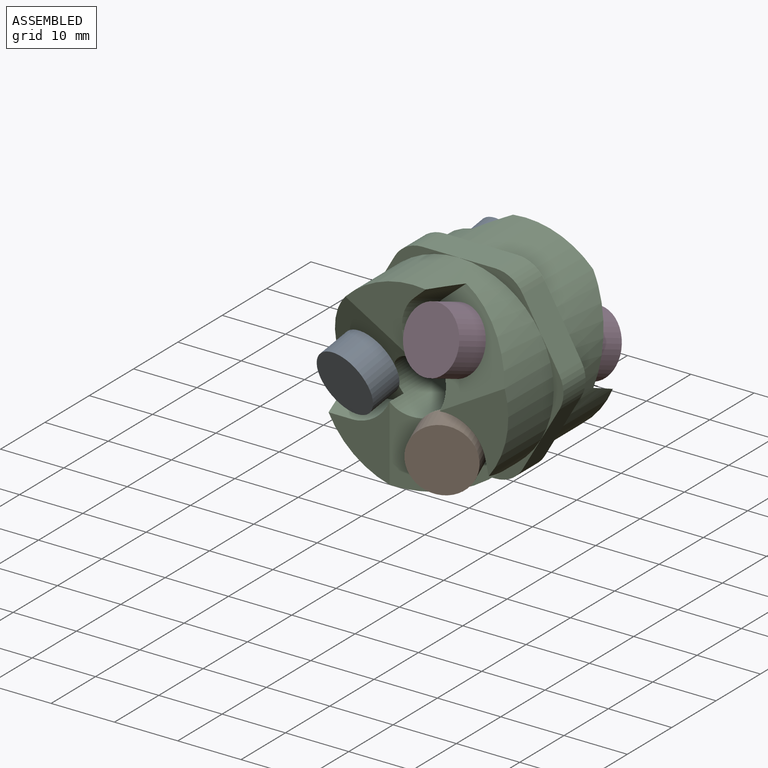
[diagram: assembled view]
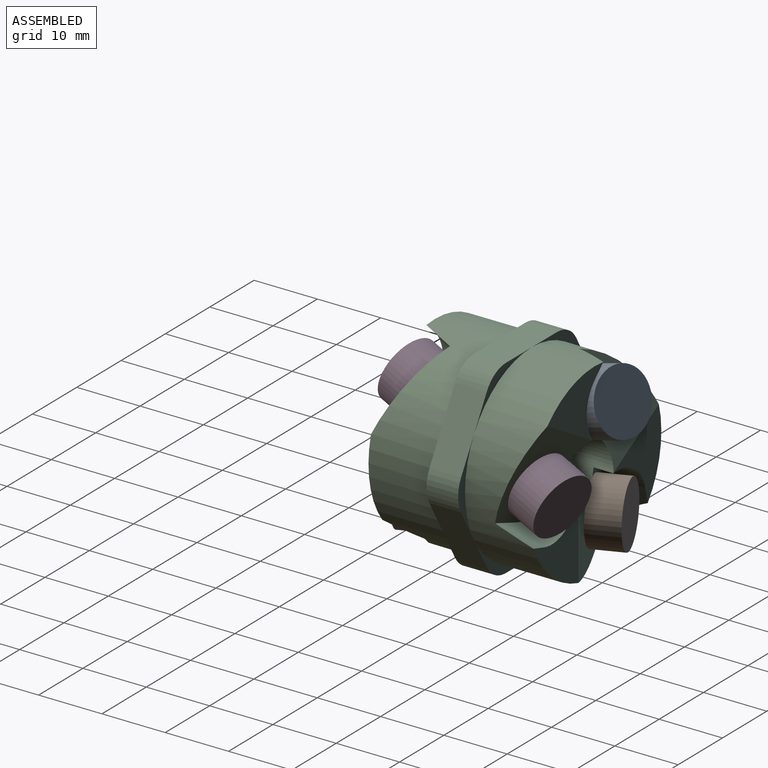
[diagram: assembled view, second angle]
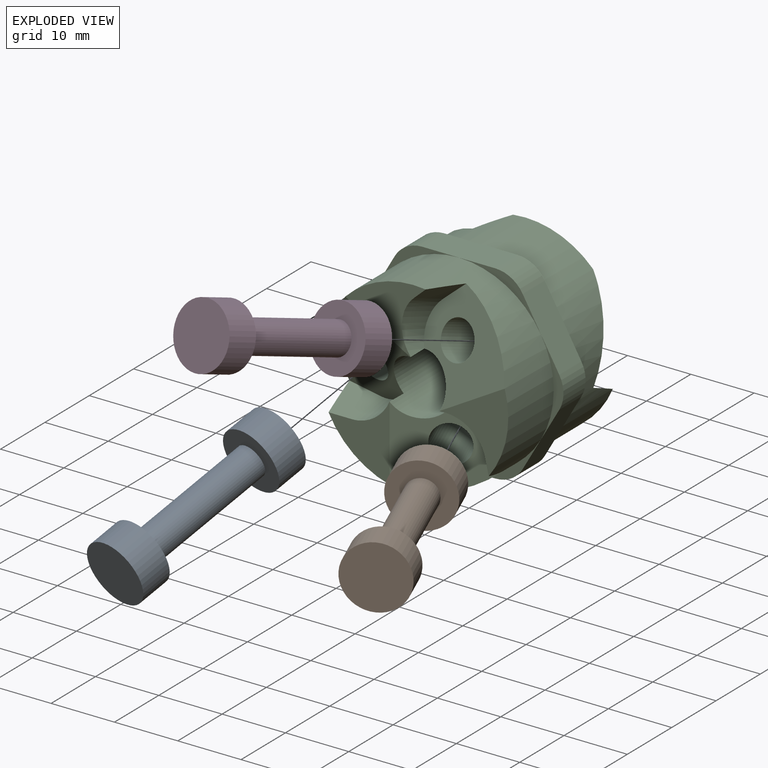
[diagram: exploded view]
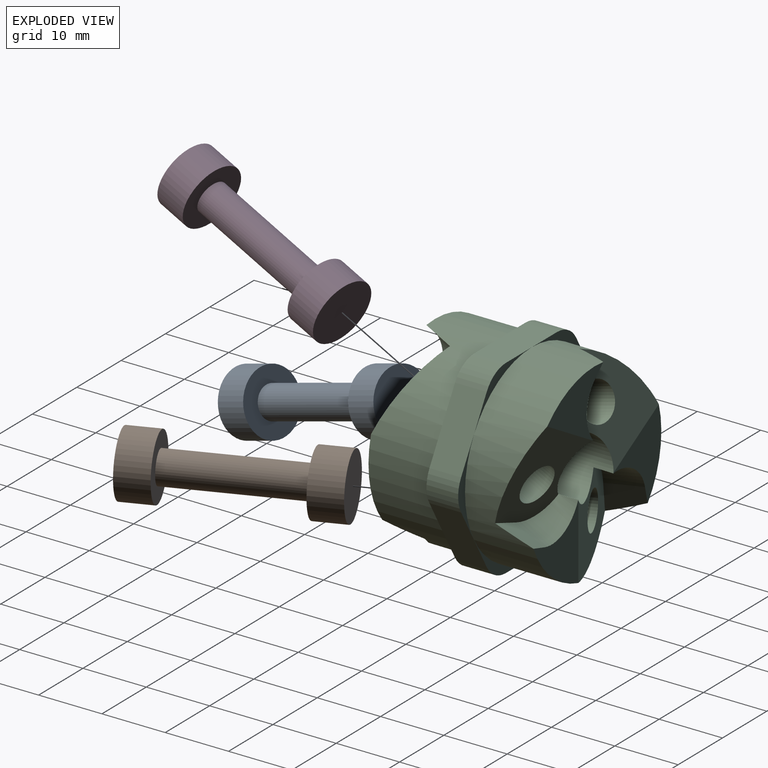
[diagram: exploded view, second angle]
ASSEMBLY  parts=4 mates=3
PART A: 7 faces, bbox 10x30.7x10 mm
  f0: cylinder r=5mm len=10mm, axis (0,1,0), area 157.1mm2, adj f1,f2
  f1: plane 10x10mm, normal (0,-1,0), area 78.5mm2, adj f0
  f2: plane 10x10mm, normal (0,1,0), area 58.9mm2, adj f0,f3
  f3: cylinder r=2.5mm len=20.72mm, axis (0,1,0), area 325.5mm2, adj f2,f6
  f4: cylinder r=5mm len=10mm, axis (0,-1,0), area 157.1mm2, adj f5,f6
  f5: plane 10x10mm, normal (0,1,0), area 78.5mm2, adj f4
  f6: plane 10x10mm, normal (0,-1,0), area 58.9mm2, adj f3,f4
PART B: same geometry as A
PART C: 54 faces, bbox 33.1x30.2x30 mm
  f0: cylinder r=15mm len=30mm, axis (0,-1,0), area 807.6mm2, adj f5,f6,f7,f18,f20,f22,f26,f27
  f1: cylinder r=15mm len=30mm, axis (0,-1,0), area 792.2mm2, adj f11,f13,f15,f17,f19,f21,f23,f24
  f2: cylinder r=6mm len=9.5mm, axis (0.18,0.93,-0.32), area 38.5mm2, adj f7,f20,f26,f53
  f3: cylinder r=6mm len=8.25mm, axis (0.37,-0.93,0), area 38.6mm2, adj f5,f18,f28,f53
  f4: cylinder r=6mm len=7.2mm, axis (0.18,0.93,0.32), area 29.1mm2, adj f6,f22,f27,f53
  f5: plane 13.88x13.13mm, normal (0.37,-0.93,0), area 122.6mm2, adj f0,f3,f12,f22,f28,f53
  f6: plane 15.54x14.5mm, normal (-0.18,-0.93,-0.32), area 125.9mm2, adj f0,f4,f14,f20,f27,f53
  f7: plane 16.17x15.45mm, normal (-0.18,-0.93,0.32), area 122.3mm2, adj f0,f2,f16,f18,f26,f53
  f8: cylinder r=6mm len=8.14mm, axis (0.18,0.93,-0.32), area 38.1mm2, adj f15,f21,f25,f53
  f9: cylinder r=6mm len=9.45mm, axis (0.18,0.93,0.32), area 38.1mm2, adj f13,f17,f24,f53
  f10: cylinder r=6mm len=8.22mm, axis (0.37,-0.93,0), area 38.1mm2, adj f11,f19,f23,f53
  f11: plane 13.9x13.13mm, normal (-0.37,0.93,0), area 122.4mm2, adj f1,f10,f12,f21,f23,f53
  f12: cylinder r=3mm len=21.45mm, axis (0.37,-0.93,0), area 390.2mm2, adj f5,f11
  f13: plane 16.18x15.44mm, normal (0.18,0.93,0.32), area 122.4mm2, adj f1,f9,f14,f19,f24,f53
  f14: cylinder r=3mm len=21.46mm, axis (0.18,0.93,0.32), area 390.4mm2, adj f6,f13
  f15: plane 15.54x14.5mm, normal (0.18,0.93,-0.32), area 122.4mm2, adj f1,f8,f16,f17,f25,f53
  f16: cylinder r=3mm len=21.46mm, axis (0.18,0.93,-0.32), area 390.4mm2, adj f7,f15
  f17: plane 12.65x10.43mm, normal (0,1,0), area 57.4mm2, adj f1,f9,f15,f24,f53
  f18: plane 13.19x10.82mm, normal (0,-1,0), area 57.5mm2, adj f0,f3,f7,f28,f53
  f19: plane 13.16x10.82mm, normal (0,1,0), area 57.4mm2, adj f1,f10,f13,f23,f53
  f20: plane 12.69x10.43mm, normal (0,-1,0), area 57.5mm2, adj f0,f2,f6,f26,f53
  f21: plane 11.87x10.13mm, normal (0,1,0), area 57.4mm2, adj f1,f8,f11,f25,f53
  f22: plane 11.87x9.65mm, normal (0,-1,0), area 55.6mm2, adj f0,f4,f5,f27,f53
  f23: plane 5.53x4.44mm, normal (0.91,0.36,-0.22), area 20.6mm2, adj f1,f10,f11,f19
  f24: plane 5.53x4.42mm, normal (-0.64,0.36,-0.68), area 20.6mm2, adj f1,f9,f13,f17
  f25: plane 5.53x4.3mm, normal (-0.27,0.36,0.89), area 20.6mm2, adj f1,f8,f15,f21
  f26: plane 5.51x4.42mm, normal (0.63,-0.36,-0.69), area 20.3mm2, adj f0,f2,f7,f20
  f27: plane 5.93x5.51mm, normal (0,-0.33,0.95), area 26.7mm2, adj f0,f4,f6,f22
  f28: plane 5.52x4.41mm, normal (-0.91,-0.36,-0.2), area 20.4mm2, adj f0,f3,f5,f18
  f29: plane 11.55x5mm, normal (0,0,1), area 57.7mm2, adj f35,f40,f45,f46,f47,f52
  f30: plane 10x5.77mm, normal (0.87,0,0.5), area 57.7mm2, adj f39,f44,f45,f46,f47,f48
  f31: plane 10x5.77mm, normal (0.87,0,-0.5), area 57.7mm2, adj f38,f39,f43,f44,f48,f49
  f32: plane 11.55x5mm, normal (0,0,-1), area 57.7mm2, adj f37,f38,f42,f43,f49,f50
  f33: plane 10x5.77mm, normal (-0.87,0,-0.5), area 57.7mm2, adj f36,f37,f41,f42,f50,f51
  f34: plane 10x5.77mm, normal (-0.87,0,0.5), area 57.7mm2, adj f35,f36,f40,f41,f51,f52
  f35: plane 12.99x7.5mm, normal (0,-1,0), area 10.8mm2, adj f0,f29,f34,f52
  f36: plane 15x3.56mm, normal (0,-1,0), area 10.8mm2, adj f0,f33,f34,f51
  f37: plane 12.99x7.5mm, normal (0,-1,0), area 10.8mm2, adj f0,f32,f33,f50
  f38: plane 12.99x7.5mm, normal (0,-1,0), area 10.8mm2, adj f0,f31,f32,f49
  f39: plane 15x3.56mm, normal (0,-1,0), area 10.8mm2, adj f0,f30,f31,f48
  f40: plane 12.99x7.5mm, normal (0,1,0), area 10.8mm2, adj f1,f29,f34,f52
  f41: plane 15x3.56mm, normal (0,1,0), area 10.8mm2, adj f1,f33,f34,f51
  f42: plane 12.99x7.5mm, normal (0,1,0), area 10.8mm2, adj f1,f32,f33,f50
  f43: plane 12.99x7.5mm, normal (0,1,0), area 10.8mm2, adj f1,f31,f32,f49
  f44: plane 15x3.56mm, normal (0,1,0), area 10.8mm2, adj f1,f30,f31,f48
  f45: plane 12.99x7.5mm, normal (0,-1,0), area 10.8mm2, adj f0,f29,f30,f47
  f46: plane 12.99x7.5mm, normal (0,1,0), area 10.8mm2, adj f1,f29,f30,f47
  f47: cylinder r=5mm len=5mm, axis (0,1,0), area 26.2mm2, adj f29,f30,f45,f46
  f48: cylinder r=5mm len=5mm, axis (0,1,0), area 26.2mm2, adj f30,f31,f39,f44
  f49: cylinder r=5mm len=5mm, axis (0,1,0), area 26.2mm2, adj f31,f32,f38,f43
  f50: cylinder r=5mm len=5mm, axis (0,1,0), area 26.2mm2, adj f32,f33,f37,f42
  f51: cylinder r=5mm len=5mm, axis (0,1,0), area 26.2mm2, adj f33,f34,f36,f41
  f52: cylinder r=5mm len=5mm, axis (0,1,0), area 26.2mm2, adj f29,f34,f35,f40
  f53: cylinder r=4.6mm len=25.24mm, axis (0,1,0), area 635.3mm2, adj f2,f3,f4,f5,f6,f7,f8,f9
PART D: same geometry as A
PLACE A rot(axis=(0.87,0.08,-0.48),21.8deg) t=(-8.31,-7.83,17.18)mm
PLACE B rot(axis=(0.98,0.19,0),180deg) t=(-1.5,-7.82,5.38)mm
PLACE C t=(-1.5,2.72,5.38)mm
PLACE D rot(axis=(-0.87,-0.08,-0.48),21.8deg) t=(5.32,-7.83,17.18)mm
MATE revolute D.f3 <-> C.f2  axis (0.18,0.93,-0.32) through (5.32,-7.83,17.18)mm
MATE revolute B.f3 <-> C.f12  axis (0.37,-0.93,0) through (-1.5,-7.82,5.38)mm
MATE revolute A.f3 <-> C.f4  axis (0.18,0.93,0.32) through (-8.31,-7.83,17.18)mm
